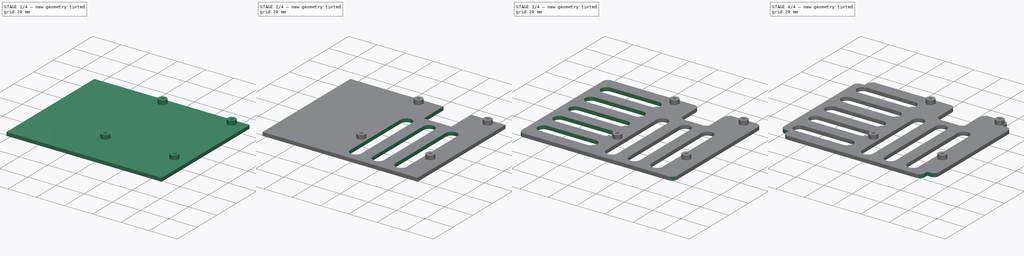
[diagram: build sequence overview — one tinted view per stage of 4, left to right]
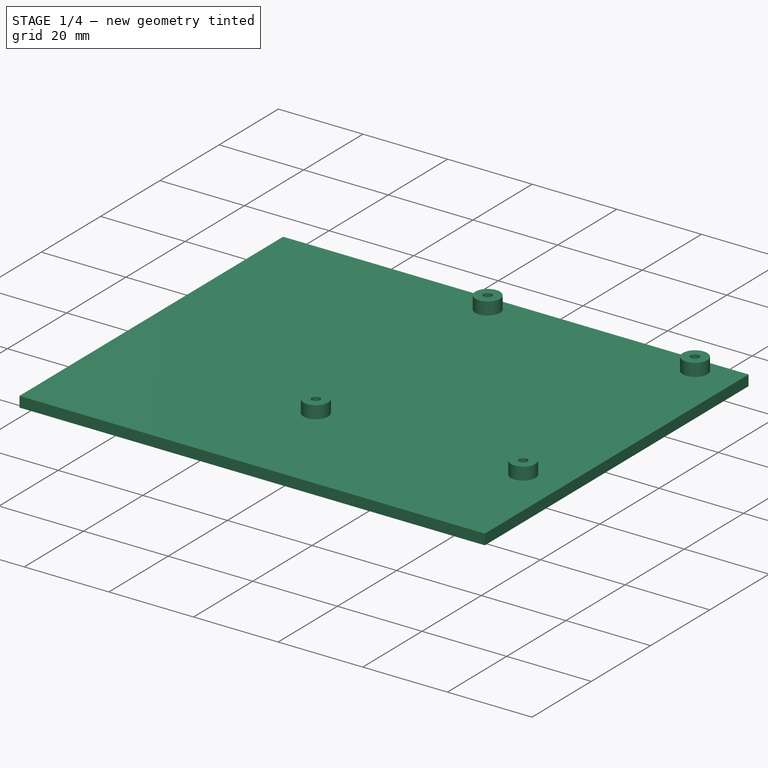
[diagram: stage 1 of 4 — iso view after this stage's code; geometry added in this stage tinted green]
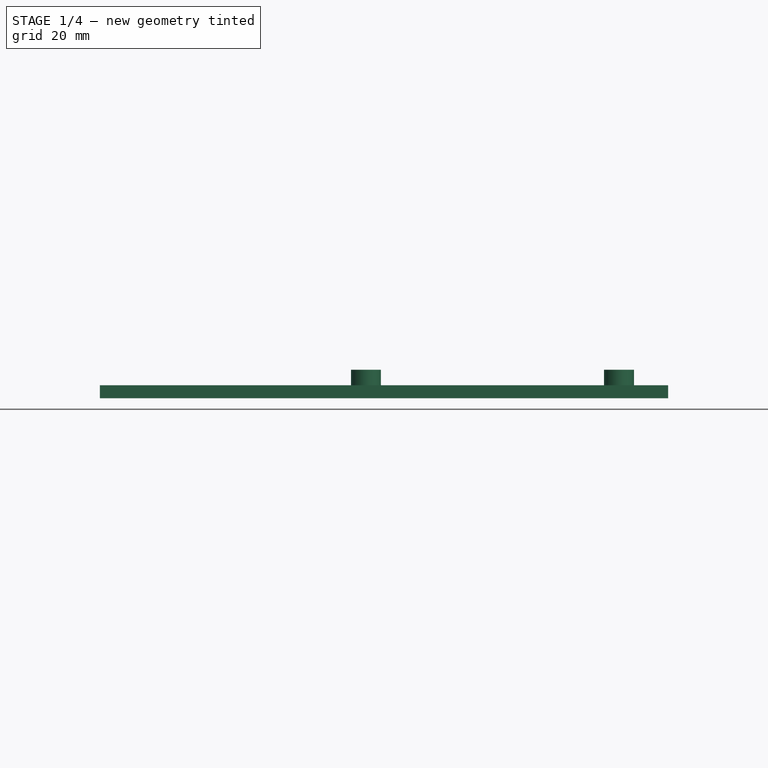
[diagram: stage 1 of 4 — front view after this stage's code; geometry added in this stage tinted green]
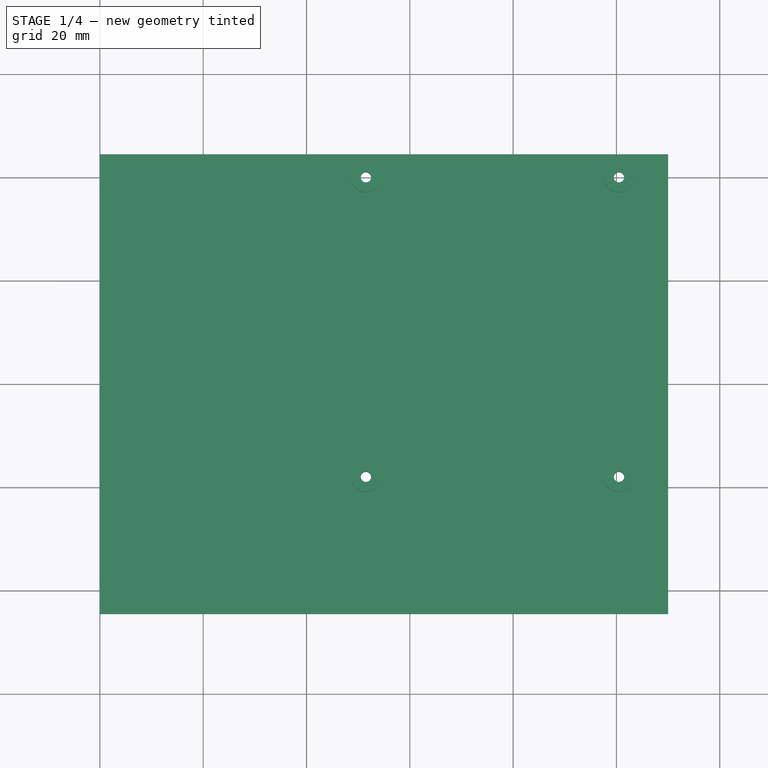
[diagram: stage 1 of 4 — top view after this stage's code; geometry added in this stage tinted green]
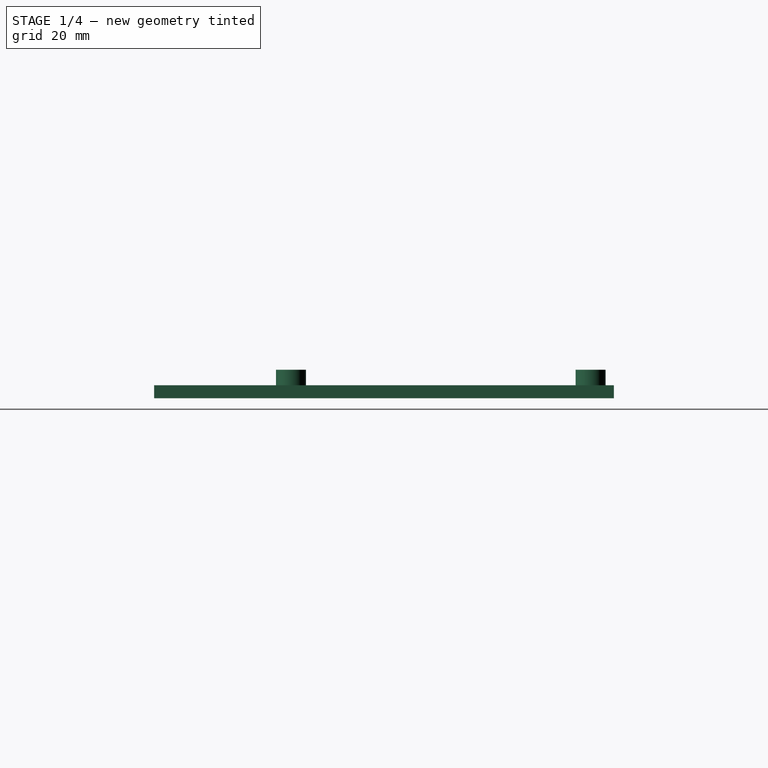
[diagram: stage 1 of 4 — right view after this stage's code; geometry added in this stage tinted green]
FCSTD DOCUMENT  (FreeCAD 1.0R39319 (Git))
Label: Pi5_Carrier_vertical_3mm
License: All rights reserved
LicenseURL: https://en.wikipedia.org/wiki/All_rights_reserved
objects: Sketcher::SketchObject×7, PartDesign::Pocket×5, PartDesign::LinearPattern×4, PartDesign::Pad×2, PartDesign::MultiTransform×2, PartDesign::Fillet×2, PartDesign::CoordinateSystem×2, PartDesign::Mirrored×1, PartDesign::Body×1, App::Part×1
note: 58 computed .brp shape members not serialized (recipe doc carries the construction recipe); baked Part::Feature solids carry a one-line shape summary decoded from their .brp

FEATURE [Sketcher::SketchObject] Sketch
  ArcFitTolerance = 1e-06
  AttachmentSupport = -> [XY_Plane001]
  FullyConstrained = true
  MakeInternals = false
  MapMode = 5
  sketch-geometry (4):
    g0: LineSegment StartX=0 StartY=44.5 StartZ=0 EndX=0 EndY=-44.5 EndZ=0
    g1: LineSegment StartX=0 StartY=-44.5 StartZ=0 EndX=110 EndY=-44.5 EndZ=0
    g2: LineSegment StartX=110 StartY=-44.5 StartZ=0 EndX=110 EndY=44.5 EndZ=0
    g3: LineSegment StartX=110 StartY=44.5 StartZ=0 EndX=0 EndY=44.5 EndZ=0
  constraints (11):
    c: Coincident(g0,g1)
    c: Coincident(g1,g2)
    c: Coincident(g2,g3)
    c: Coincident(g3,g0)
    c: Vertical(g2)
    c: Horizontal(g1)
    c: Horizontal(g3)
    c: PointOnObject(g0,g-2)
    c: Distance(g1,g3) = 89
    c: Distance(g2,g0) = 110
    c: Symmetric(g0,g0,g-1)
FEATURE [PartDesign::Pad] Pad
  Direction = (0,0,1)
  Length = 2.5
  Length2 = 10
  Profile = -> Sketch
  ReferenceAxis = -> Sketch [N_Axis]
  Refine = true
  Suppressed = false
  Type = 0
FEATURE [Sketcher::SketchObject] Sketch001
  ArcFitTolerance = 1e-06
  AttachmentSupport = -> [Pad]
  ExternalGeometry = -> [Pad]
  FullyConstrained = true
  MakeInternals = false
  MapMode = 5
  Placement = pos=(0,0,2.5) rot=(0,0,1;0rad)
  sketch-geometry (8):
    g0: LineSegment [constr] StartX=51.5 StartY=40 StartZ=0 EndX=51.5 EndY=-18 EndZ=0
    g1: LineSegment [constr] StartX=51.5 StartY=-18 StartZ=0 EndX=100.5 EndY=-18 EndZ=0
    g2: LineSegment [constr] StartX=100.5 StartY=-18 StartZ=0 EndX=100.5 EndY=40 EndZ=0
    g3: LineSegment [constr] StartX=100.5 StartY=40 StartZ=0 EndX=51.5 EndY=40 EndZ=0
    g4: Circle CenterX=100.5 CenterY=40 CenterZ=0 NormalX=0 NormalY=0 NormalZ=1 AngleXU=0 Radius=2.9
    g5: Circle CenterX=100.5 CenterY=-18 CenterZ=0 NormalX=0 NormalY=0 NormalZ=1 AngleXU=0 Radius=2.9
    g6: Circle CenterX=51.5 CenterY=40 CenterZ=0 NormalX=0 NormalY=0 NormalZ=1 AngleXU=0 Radius=2.9
    g7: Circle CenterX=51.5 CenterY=-18 CenterZ=0 NormalX=0 NormalY=0 NormalZ=1 AngleXU=0 Radius=2.9
  constraints (20):
    c: Coincident(g0,g1)
    c: Coincident(g1,g2)
    c: Coincident(g2,g3)
    c: Coincident(g3,g0)
    c: Vertical(g0)
    c: Vertical(g2)
    c: Horizontal(g1)
    c: Horizontal(g3)
    c: Coincident(g4,g2)
    c: Coincident(g5,g1)
    c: Coincident(g6,g0)
    c: Coincident(g7,g0)
    c: Distance(g-3,g2) = 9.5
    c: Distance(g1,g3) = 58
    c: Distance(g0,g2) = 49
    c: Diameter(g7) = 5.8
    c: Diameter(g6) = 5.8
    c: Diameter(g4) = 5.8
    c: Diameter(g5) = 5.8
    c: Distance(g-4,g3) = 4.5
FEATURE [PartDesign::Pad] Pad001
  BaseFeature = -> Pad
  Direction = (0,0,1)
  Length = 3
  Length2 = 10
  Profile = -> Sketch001
  ReferenceAxis = -> Sketch001 [N_Axis]
  Refine = true
  Suppressed = false
  Type = 0
FEATURE [Sketcher::SketchObject] Sketch002
  ArcFitTolerance = 1e-06
  AttachmentSupport = -> [Pad001]
  ExternalGeometry = -> [Pad001]
  FullyConstrained = true
  MakeInternals = false
  MapMode = 5
  Placement = pos=(0,0,5.5) rot=(0,0,1;0rad)
  sketch-geometry (4):
    g0: Circle CenterX=51.5 CenterY=40 CenterZ=0 NormalX=0 NormalY=0 NormalZ=1 AngleXU=0 Radius=1
    g1: Circle CenterX=100.5 CenterY=40 CenterZ=0 NormalX=0 NormalY=0 NormalZ=1 AngleXU=0 Radius=1
    g2: Circle CenterX=51.5 CenterY=-18 CenterZ=0 NormalX=0 NormalY=0 NormalZ=1 AngleXU=0 Radius=1
    g3: Circle CenterX=100.5 CenterY=-18 CenterZ=0 NormalX=0 NormalY=0 NormalZ=1 AngleXU=0 Radius=1
  constraints (8):
    c: Coincident(g0,g-4)
    c: Coincident(g1,g-3)
    c: Coincident(g2,g-5)
    c: Coincident(g3,g-6)
    c: Diameter(g0) = 2
    c: Diameter(g1) = 2
    c: Diameter(g2) = 2
    c: Diameter(g3) = 2
FEATURE [PartDesign::Pocket] Pocket
  BaseFeature = -> Pad001
  Direction = (0,0,-1)
  Length = 5
  Length2 = 5
  Profile = -> Sketch002
  ReferenceAxis = -> Sketch002 [N_Axis]
  Refine = true
  Suppressed = false
  Type = 1
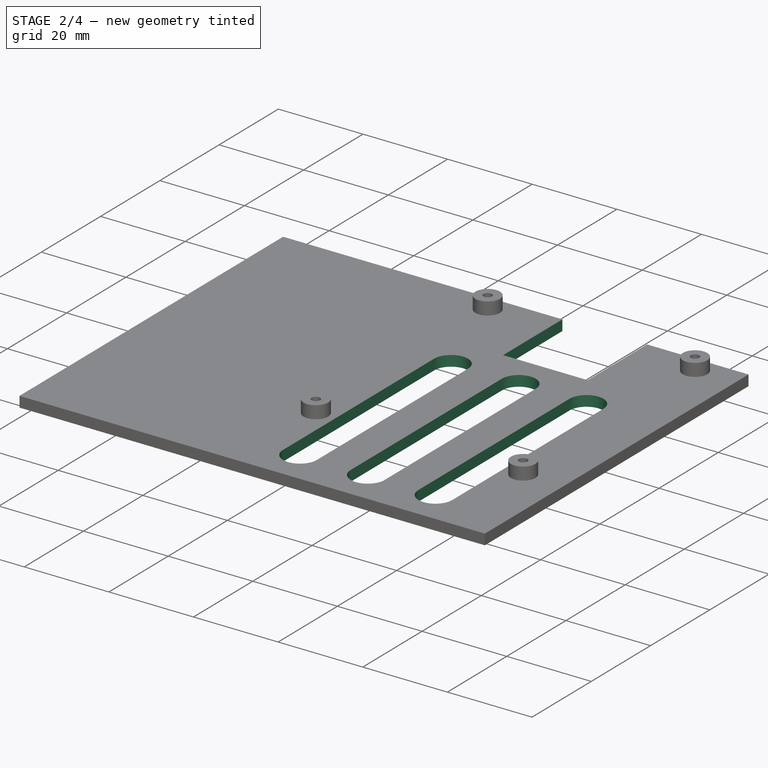
[diagram: stage 2 of 4 — iso view after this stage's code; geometry added in this stage tinted green]
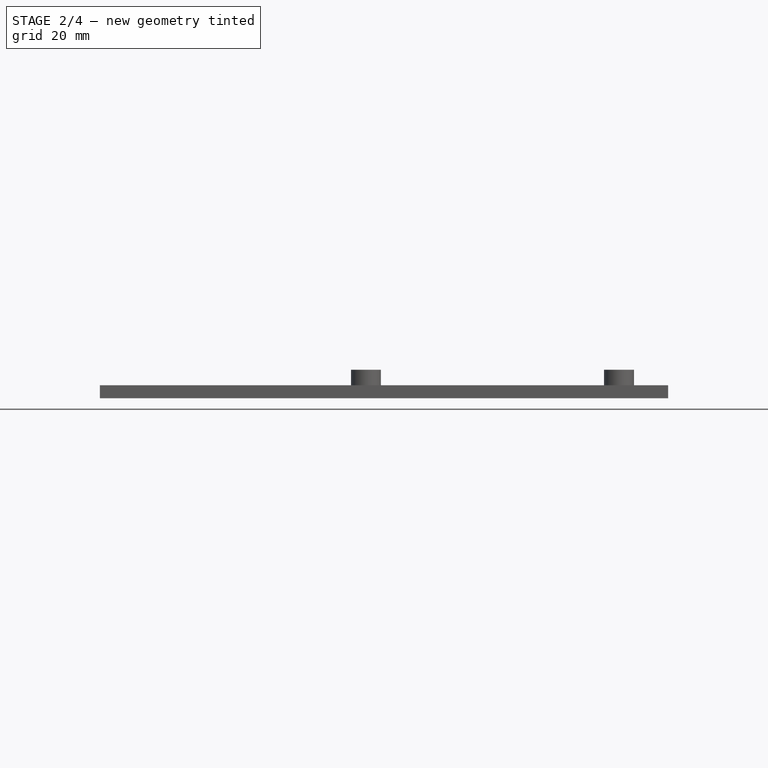
[diagram: stage 2 of 4 — front view after this stage's code; geometry added in this stage tinted green]
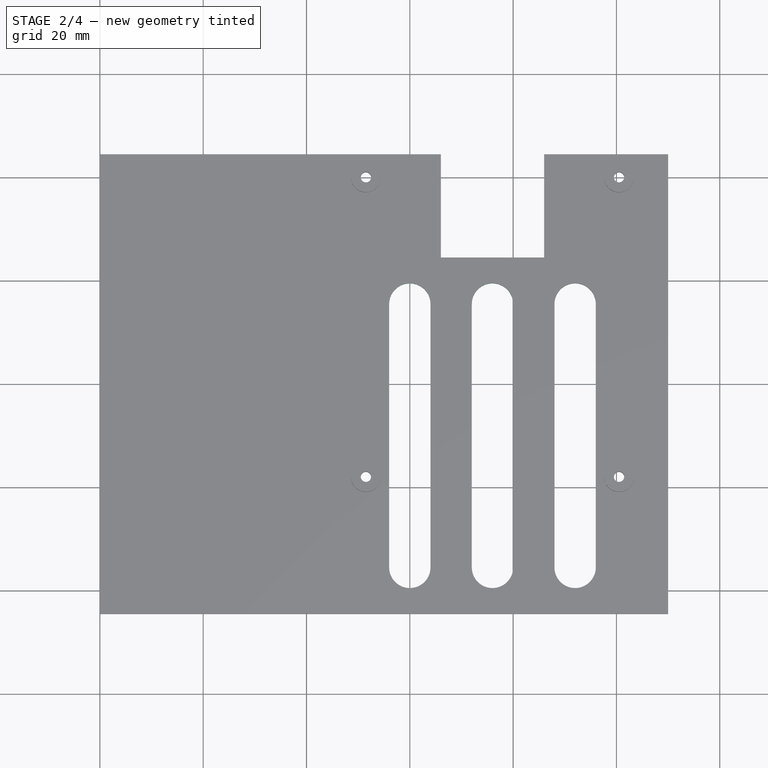
[diagram: stage 2 of 4 — top view after this stage's code; geometry added in this stage tinted green]
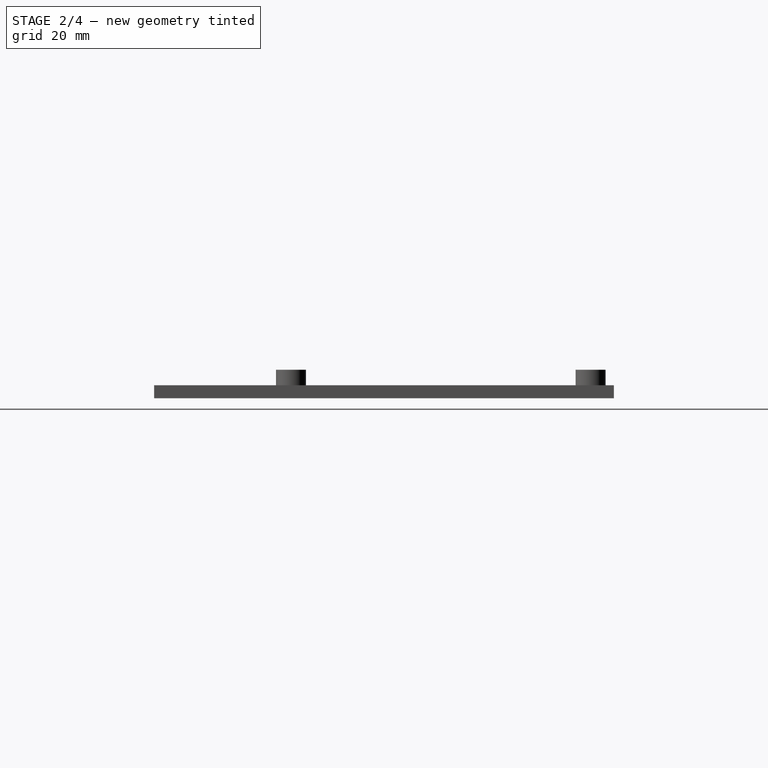
[diagram: stage 2 of 4 — right view after this stage's code; geometry added in this stage tinted green]
FEATURE [Sketcher::SketchObject] Sketch003
  ArcFitTolerance = 1e-06
  ExternalGeometry = -> [Pocket]
  FullyConstrained = true
  MakeInternals = false
  MapMode = 5
  Placement = pos=(0,0,2.5) rot=(0,0,1;0rad)
  sketch-geometry (5):
    g0: LineSegment StartX=66 StartY=44.5 StartZ=0 EndX=66 EndY=24.5 EndZ=0
    g1: LineSegment StartX=66 StartY=24.5 StartZ=0 EndX=86 EndY=24.5 EndZ=0
    g2: LineSegment StartX=86 StartY=24.5 StartZ=0 EndX=86 EndY=44.5 EndZ=0
    g3: LineSegment StartX=86 StartY=44.5 StartZ=0 EndX=66 EndY=44.5 EndZ=0
    g4: LineSegment [constr] StartX=76 StartY=44.5 StartZ=0 EndX=76 EndY=24.5 EndZ=0
  constraints (13):
    c: Coincident(g0,g1)
    c: Coincident(g1,g2)
    c: Coincident(g2,g3)
    c: Coincident(g3,g0)
    c: Vertical(g0)
    c: Horizontal(g1)
    c: Horizontal(g3)
    c: DistanceY(g0,g0) = 20
    c: DistanceX(g3,g3) = 20
    c: Symmetric(g3,g3,g4)
    c: Symmetric(g1,g1,g4)
    c: PointOnObject(g2,g-3)
    c: Symmetric(g-4,g-5,g4)
FEATURE [PartDesign::Pocket] Pocket001
  BaseFeature = -> Pocket
  Direction = (0,0,-1)
  Length = 5
  Length2 = 5
  Profile = -> Sketch003
  ReferenceAxis = -> Sketch003 [N_Axis]
  Refine = true
  Suppressed = false
  Type = 1
FEATURE [Sketcher::SketchObject] Sketch004
  ArcFitTolerance = 1e-06
  AttachmentSupport = -> [Pocket001]
  ExternalGeometry = -> [Pocket001]
  FullyConstrained = true
  MakeInternals = false
  MapMode = 5
  Placement = pos=(0,0,2.5) rot=(0,0,1;0rad)
  sketch-geometry (5):
    g0: ArcOfCircle CenterX=76 CenterY=15.5 CenterZ=0 NormalX=0 NormalY=0 NormalZ=1 AngleXU=0 Radius=4 StartAngle=1e-16 EndAngle=3.14159
    g1: ArcOfCircle CenterX=76 CenterY=-35.5 CenterZ=0 NormalX=0 NormalY=0 NormalZ=1 AngleXU=0 Radius=4 StartAngle=3.14159 EndAngle=6.28319
    g2: LineSegment StartX=80 StartY=15.5 StartZ=0 EndX=80 EndY=-35.5 EndZ=0
    g3: LineSegment StartX=72 StartY=15.5 StartZ=0 EndX=72 EndY=-35.5 EndZ=0
    g4: LineSegment [constr] StartX=76 StartY=15.5 StartZ=0 EndX=76 EndY=-35.5 EndZ=0
  constraints (11):
    c: Tangent(g0,g2) = 1.5708
    c: Tangent(g0,g3) = -1.5708
    c: Tangent(g1,g2) = 1.5708
    c: Tangent(g1,g3) = -1.5708
    c: Equal(g0,g1)
    c: Distance(g0,g-3) = 5
    c: Radius(g1) = 4
    c: Coincident(g4,g0)
    c: Coincident(g4,g1)
    c: Symmetric(g-3,g-3,g4)
    c: Distance(g1,g-4) = 5
FEATURE [PartDesign::Pocket] Pocket002
  BaseFeature = -> Pocket001
  Direction = (0,0,-1)
  Length = 5
  Length2 = 5
  Profile = -> Sketch004
  ReferenceAxis = -> Sketch004 [N_Axis]
  Refine = true
  Suppressed = false
  Type = 1
FEATURE [PartDesign::LinearPattern] LinearPattern
  Direction = -> Sketch004 [H_Axis]
  Length = 16
  Mode = 1
  Occurrences = 2
  Offset = 16
  Refine = true
  Suppressed = false
  TransformMode = 0
FEATURE [PartDesign::LinearPattern] LinearPattern001
  Direction = -> Sketch004 [H_Axis]
  Length = 16
  Mode = 1
  Occurrences = 2
  Offset = 16
  Refine = true
  Reversed = true
  Suppressed = false
  TransformMode = 0
FEATURE [PartDesign::MultiTransform] MultiTransform
  BaseFeature = -> Pocket002
  Originals = -> [Pocket002]
  Refine = true
  Suppressed = false
  TransformMode = 0
  Transformations = -> [LinearPattern,LinearPattern001]
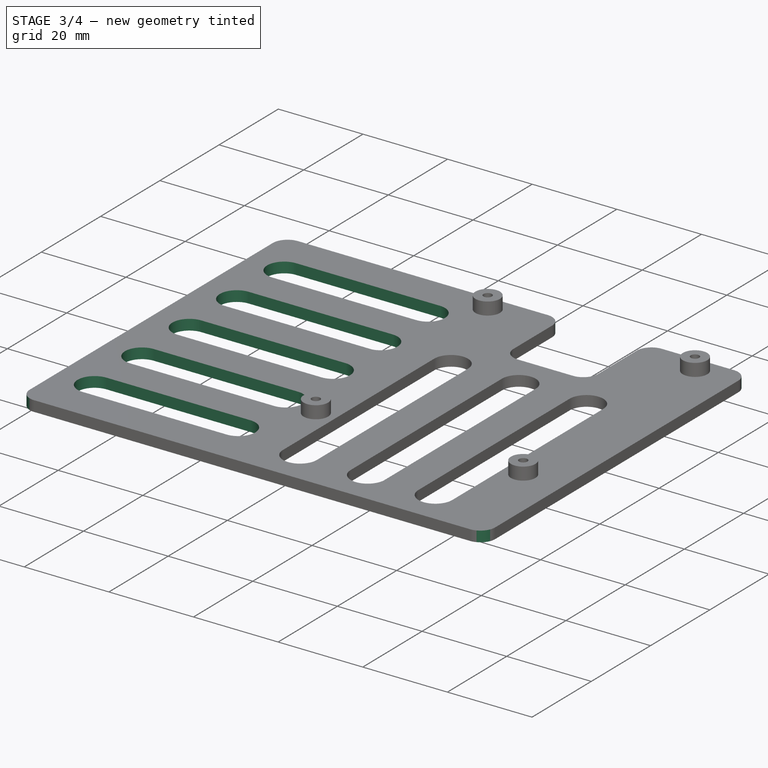
[diagram: stage 3 of 4 — iso view after this stage's code; geometry added in this stage tinted green]
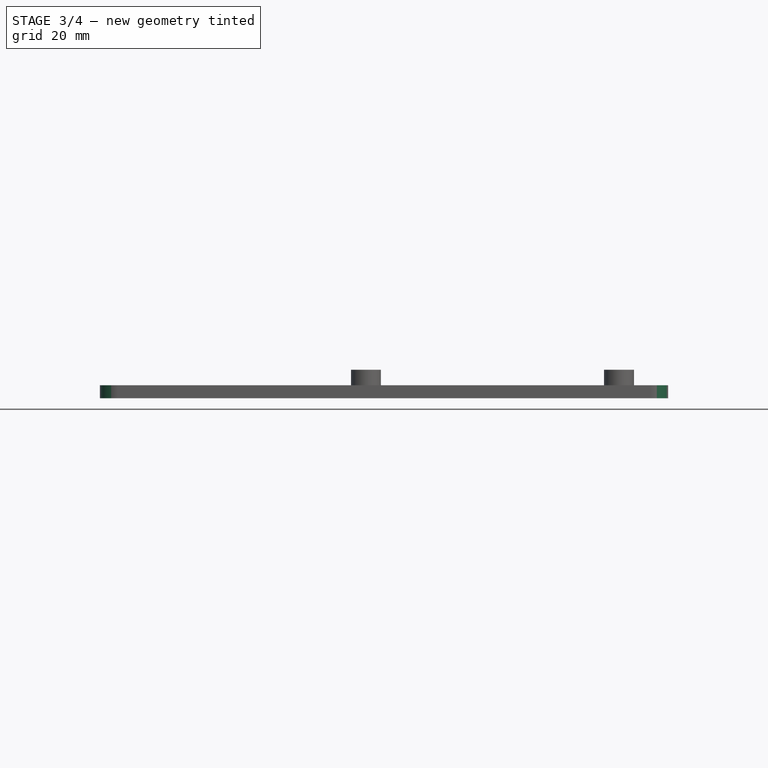
[diagram: stage 3 of 4 — front view after this stage's code; geometry added in this stage tinted green]
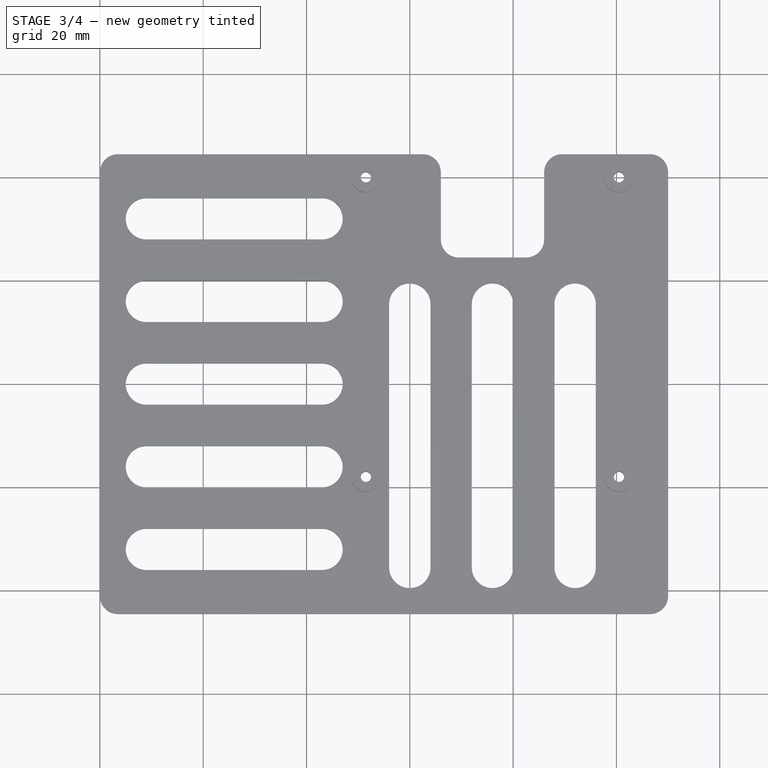
[diagram: stage 3 of 4 — top view after this stage's code; geometry added in this stage tinted green]
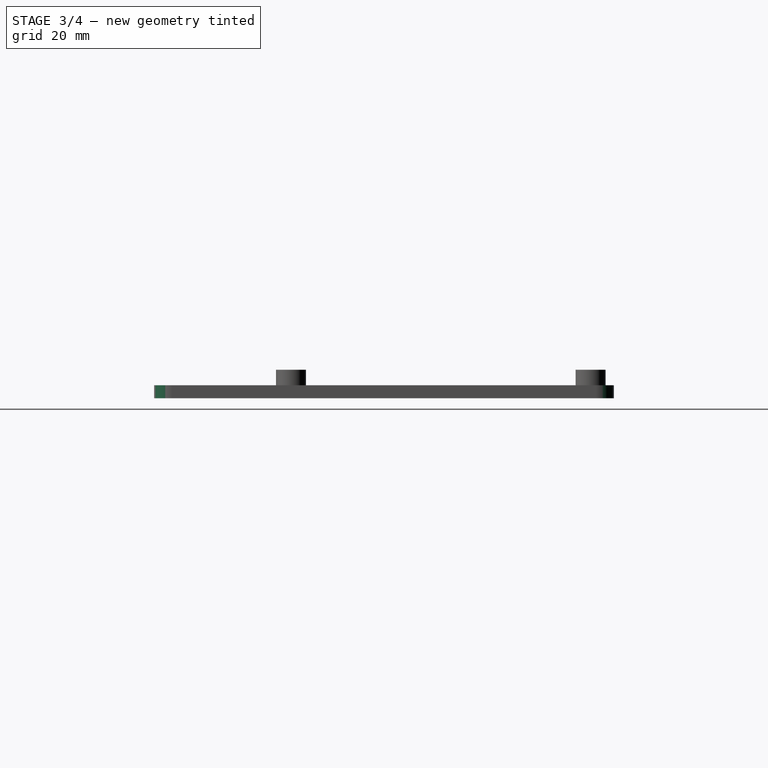
[diagram: stage 3 of 4 — right view after this stage's code; geometry added in this stage tinted green]
FEATURE [Sketcher::SketchObject] Sketch005
  ArcFitTolerance = 1e-06
  AttachmentSupport = -> [MultiTransform]
  ExternalGeometry = -> [MultiTransform]
  FullyConstrained = true
  MakeInternals = false
  MapMode = 5
  Placement = pos=(0,0,2.5) rot=(0,0,1;0rad)
  sketch-geometry (5):
    g0: ArcOfCircle CenterX=9 CenterY=0 CenterZ=0 NormalX=0 NormalY=0 NormalZ=1 AngleXU=0 Radius=4 StartAngle=1.5708 EndAngle=4.71239
    g1: ArcOfCircle CenterX=43 CenterY=-1e-16 CenterZ=0 NormalX=0 NormalY=0 NormalZ=1 AngleXU=0 Radius=4 StartAngle=4.71239 EndAngle=7.85398
    g2: LineSegment StartX=9 StartY=4 StartZ=0 EndX=43 EndY=4 EndZ=0
    g3: LineSegment StartX=9 StartY=-4 StartZ=0 EndX=43 EndY=-4 EndZ=0
    g4: LineSegment [constr] StartX=51.5 StartY=40 StartZ=0 EndX=51.5 EndY=-18 EndZ=0
  constraints (12):
    c: Tangent(g0,g2) = 1.5708
    c: Tangent(g0,g3) = -1.5708
    c: Tangent(g1,g2) = 1.5708
    c: Tangent(g1,g3) = -1.5708
    c: Equal(g0,g1)
    c: Horizontal(g3)
    c: PointOnObject(g0,g-1)
    c: Radius(g0) = 4
    c: Distance(g0,g-2) = 5
    c: Coincident(g4,g-5)
    c: Coincident(g4,g-3)
    c: Distance(g1,g4) = 4.5
FEATURE [PartDesign::Pocket] Pocket003
  BaseFeature = -> MultiTransform
  Direction = (0,0,-1)
  Length = 5
  Length2 = 5
  Profile = -> Sketch005
  ReferenceAxis = -> Sketch005 [N_Axis]
  Refine = true
  Suppressed = false
  Type = 1
FEATURE [PartDesign::LinearPattern] LinearPattern002
  Direction = -> Y_Axis001
  Length = 32
  Mode = 1
  Occurrences = 3
  Offset = 16
  Refine = true
  Suppressed = false
  TransformMode = 0
FEATURE [PartDesign::LinearPattern] LinearPattern003
  Direction = -> Y_Axis001
  Length = 32
  Mode = 1
  Occurrences = 3
  Offset = 16
  Refine = true
  Reversed = true
  Suppressed = false
  TransformMode = 0
FEATURE [PartDesign::MultiTransform] MultiTransform001
  BaseFeature = -> Pocket003
  Originals = -> [Pocket003]
  Refine = true
  Suppressed = false
  TransformMode = 0
  Transformations = -> [LinearPattern002,LinearPattern003]
FEATURE [PartDesign::Fillet] Fillet
  Base = -> MultiTransform001 [Edge94,Edge7,Edge93,Edge8,Edge96,Edge95,Edge1,Edge2]
  BaseFeature = -> MultiTransform001
  Radius = 3.5
  Refine = true
  SupportTransform = false
  Suppressed = false
  UseAllEdges = false
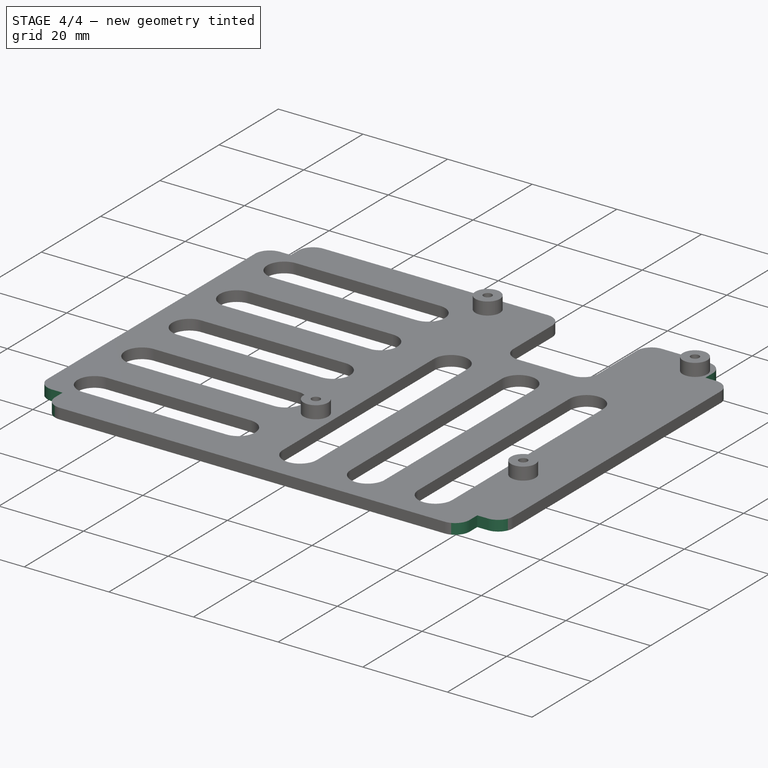
[diagram: stage 4 of 4 — iso view after this stage's code; geometry added in this stage tinted green]
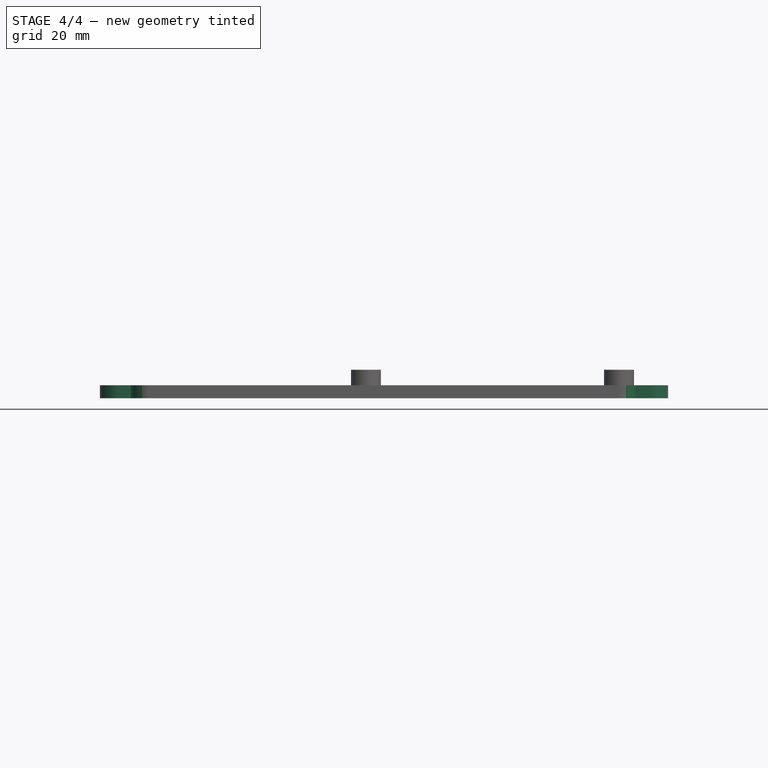
[diagram: stage 4 of 4 — front view after this stage's code; geometry added in this stage tinted green]
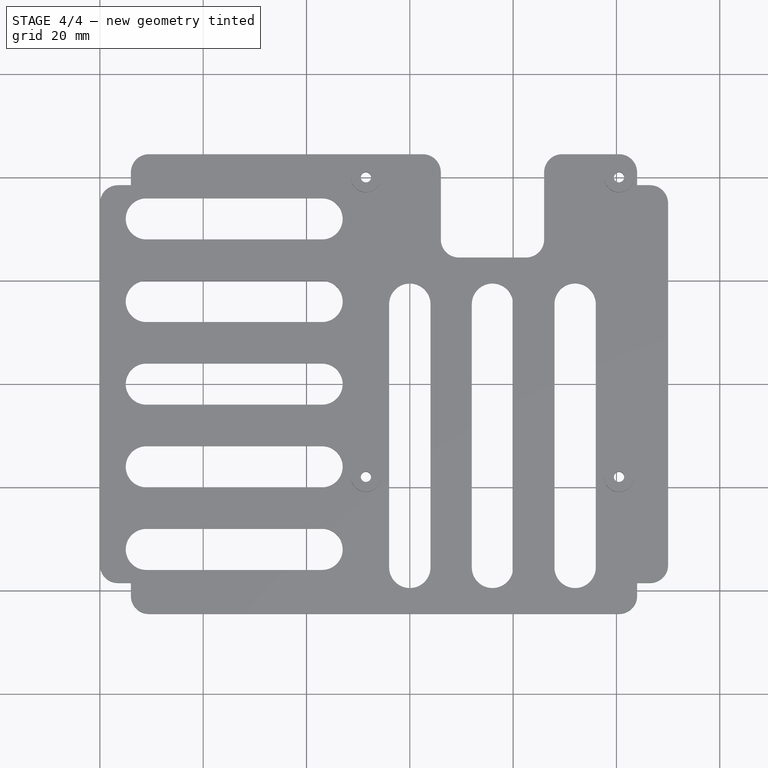
[diagram: stage 4 of 4 — top view after this stage's code; geometry added in this stage tinted green]
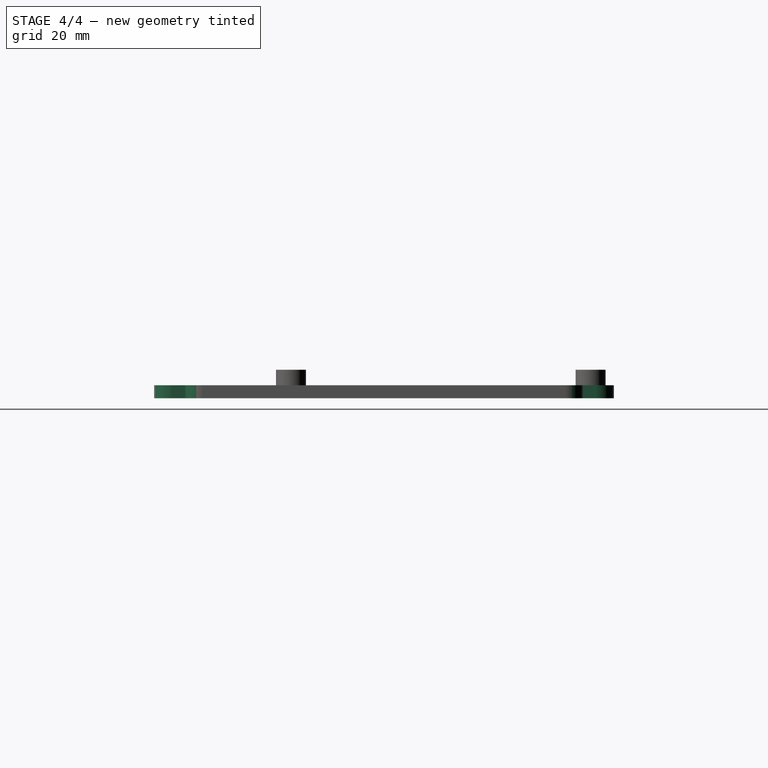
[diagram: stage 4 of 4 — right view after this stage's code; geometry added in this stage tinted green]
FEATURE [Sketcher::SketchObject] Sketch006
  ArcFitTolerance = 1e-06
  AttachmentSupport = -> [Fillet]
  ExternalGeometry = -> [Fillet]
  FullyConstrained = true
  MakeInternals = false
  MapMode = 5
  Placement = pos=(0,0,2.5) rot=(0,0,1;0rad)
  sketch-geometry (8):
    g0: LineSegment StartX=6 StartY=44.5 StartZ=0 EndX=0 EndY=44.5 EndZ=0
    g1: LineSegment StartX=0 StartY=44.5 StartZ=0 EndX=0 EndY=38.5 EndZ=0
    g2: LineSegment StartX=0 StartY=38.5 StartZ=0 EndX=6 EndY=38.5 EndZ=0
    g3: LineSegment StartX=6 StartY=38.5 StartZ=0 EndX=6 EndY=44.5 EndZ=0
    g4: LineSegment StartX=104 StartY=44.5 StartZ=0 EndX=104 EndY=38.5 EndZ=0
    g5: LineSegment StartX=104 StartY=38.5 StartZ=0 EndX=110 EndY=38.5 EndZ=0
    g6: LineSegment StartX=110 StartY=38.5 StartZ=0 EndX=110 EndY=44.5 EndZ=0
    g7: LineSegment StartX=110 StartY=44.5 StartZ=0 EndX=104 EndY=44.5 EndZ=0
  constraints (24):
    c: Coincident(g0,g1)
    c: Coincident(g1,g2)
    c: Coincident(g2,g3)
    c: Coincident(g3,g0)
    c: Horizontal(g0)
    c: Horizontal(g2)
    c: Vertical(g1)
    c: Vertical(g3)
    c: PointOnObject(g0,g-5)
    c: PointOnObject(g1,g-2)
    c: Coincident(g4,g5)
    c: Coincident(g5,g6)
    c: Coincident(g6,g7)
    c: Coincident(g7,g4)
    c: Vertical(g4)
    c: Vertical(g6)
    c: Horizontal(g5)
    c: Horizontal(g7)
    c: PointOnObject(g4,g-3)
    c: PointOnObject(g5,g-4)
    c: DistanceY(g6,g6) = 6
    c: DistanceX(g7,g7) = 6
    c: DistanceX(g0,g0) = 6
    c: Distance(g3,g3) = 6
FEATURE [PartDesign::Pocket] Pocket004
  BaseFeature = -> Fillet
  Direction = (0,0,-1)
  Length = 5
  Length2 = 5
  Profile = -> Sketch006
  ReferenceAxis = -> Sketch006 [N_Axis]
  Refine = true
  Suppressed = false
  Type = 1
FEATURE [PartDesign::Mirrored] Mirrored
  BaseFeature = -> Pocket004
  MirrorPlane = -> XZ_Plane001
  Originals = -> [Pocket004]
  Refine = true
  Suppressed = false
  TransformMode = 0
FEATURE [PartDesign::Fillet] Fillet001
  Base = -> Mirrored [Edge132,Edge4,Edge125,Edge127,Edge128,Edge130,Edge131,Edge2]
  BaseFeature = -> Mirrored
  Radius = 3.5
  Refine = true
  SupportTransform = false
  Suppressed = false
  UseAllEdges = false
FEATURE [PartDesign::Body] Body  label="Pi5_Carrier_vertical_3mm001"
  AllowCompound = false
  Group = -> [Sketch,Pad,Sketch001,Pad001,Sketch002,Pocket,Sketch003,Pocket001,Sketch004,Pocket002,MultiTransform,LinearPattern,LinearPattern001,Sketch005,Pocket003,MultiTransform001,LinearPattern002,LinearPattern003,Fillet,Sketch006,Pocket004,Mirrored,Fillet001]
  Origin = -> Origin001
  Tip = -> Fillet001
FEATURE [PartDesign::CoordinateSystem] LCS_1
  AttacherType = Attacher::AttachEngine3D
FEATURE [PartDesign::CoordinateSystem] pi5_att
  AttacherType = Attacher::AttachEngine3D
  AttachmentSupport = -> [Fillet001]
  MapMode = 11
  Placement = pos=(100.5,40,5.5) rot=(0,0,1;1.5708rad)
FEATURE [App::Part] Part  label="Pi5_Carrier_vertical_3mm"
  Group = -> [Body,LCS_1,pi5_att]
  Origin = -> Origin
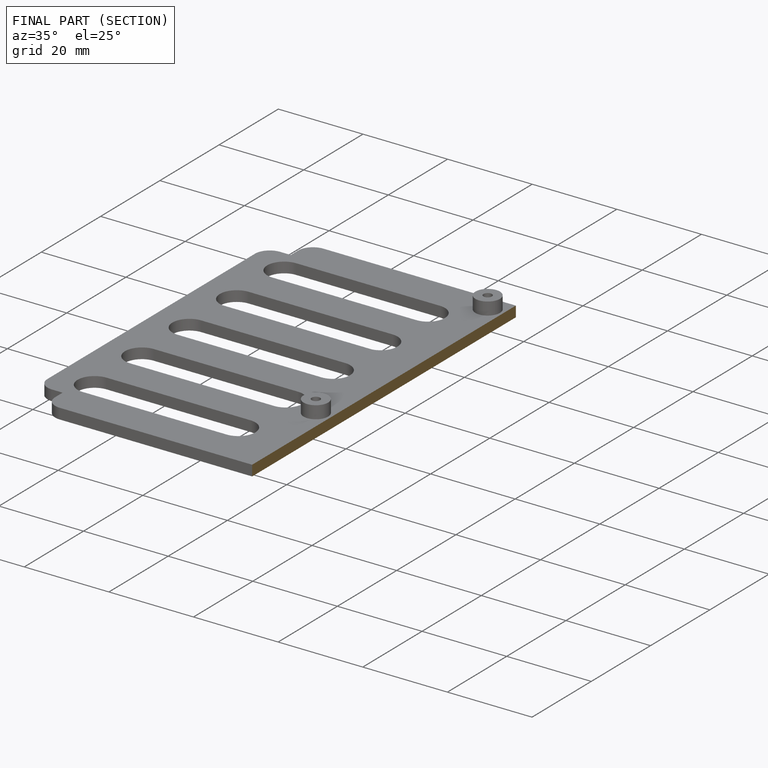
[diagram: finished part — half-section view (interior)]
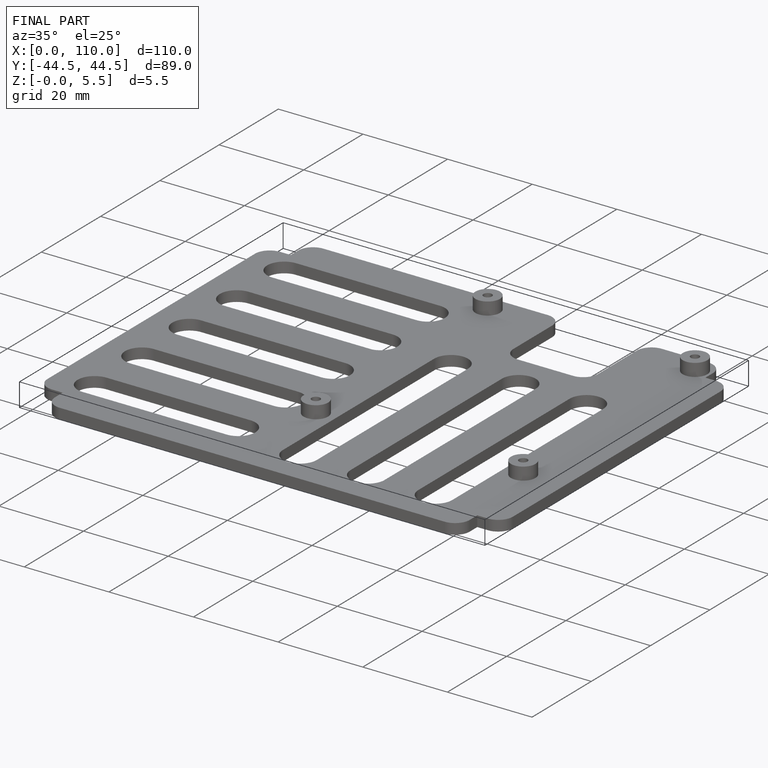
[diagram: finished part — iso view with bounding-box wireframe]
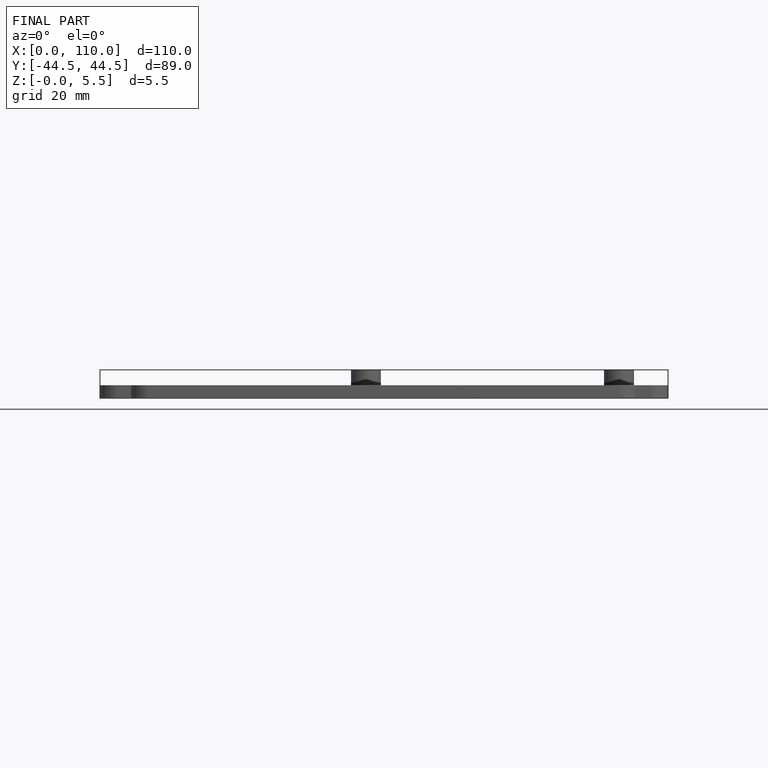
[diagram: finished part — front view with bounding-box wireframe]
